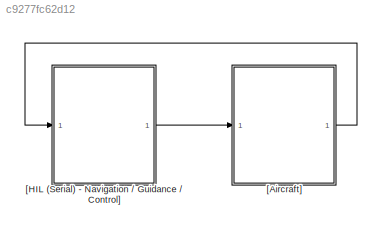
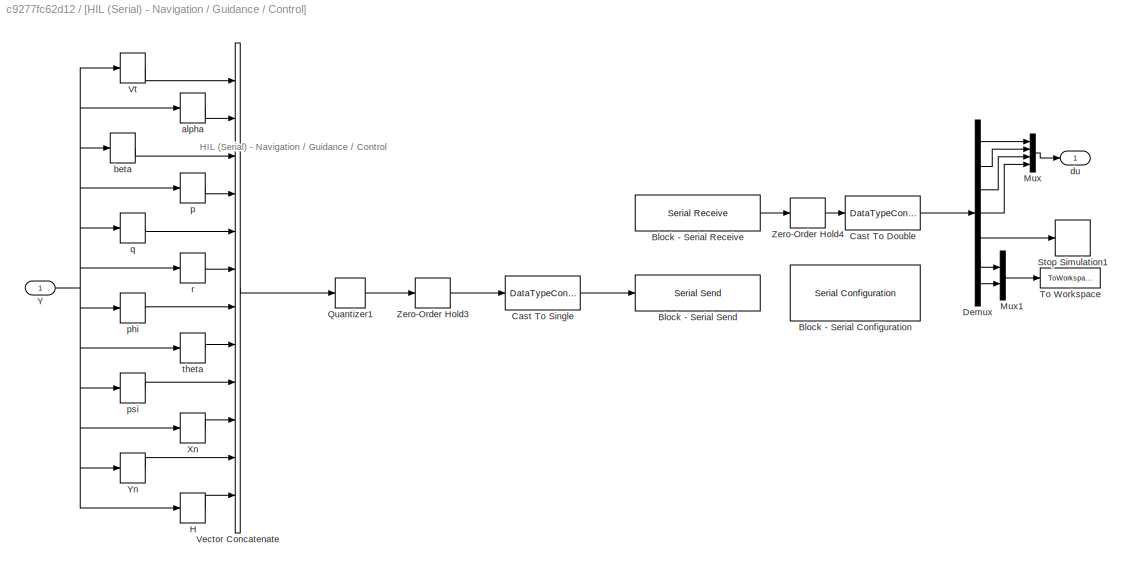
MODEL slx_c9277fc62d12
KIND model
CONFIG AbsTol = auto
CONFIG EnableMultiTasking = on
CONFIG FixedStep = 0.01
CONFIG MaxStep = auto
CONFIG MinStep = auto
CONFIG RelTol = 1e-3
CONFIG SampleTimeConstraint = Unconstrained
CONFIG Solver = ode4
CONFIG SolverName = ode4
CONFIG StartTime = 0.0
CONFIG StopTime = inf
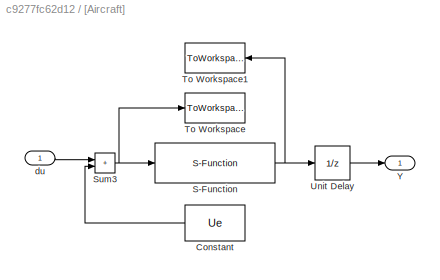
BLOCK [SubSystem] [Aircraft]
  Ports = [1, 1]
  RequestExecContextInheritance = off
BLOCK [Constant] [Aircraft]/Constant
  Value = Ue
BLOCK [S-Function] [Aircraft]/S-Function
  EnableBusSupport = off
  FunctionName = sfunction_piper
  Parameters = par_gen,par_aero,par_prop, Xe
  Ports = [1, 1]
  SFcnIsStateOwnerBlock = off
  SFunctionDeploymentMode = off
BLOCK [Sum] [Aircraft]/Sum3
  IconShape = rectangular
  Ports = [2, 1]
BLOCK [ToWorkspace] [Aircraft]/To Workspace
  MaxDataPoints = inf
  Ports = [1]
  SampleTime = -1
  SaveFormat = Timeseries
  VariableName = U
BLOCK [ToWorkspace] [Aircraft]/To Workspace1
  MaxDataPoints = inf
  Ports = [1]
  SampleTime = -1
  SaveFormat = Timeseries
  VariableName = Y
BLOCK [UnitDelay] [Aircraft]/Unit Delay
  HasFrameUpgradeWarning = on
  SampleTime = -1
BLOCK [Outport] [Aircraft]/Y
BLOCK [Inport] [Aircraft]/du
BLOCK [SubSystem] [HIL (Serial) - Navigation // Guidance // Control]
  Ports = [1, 1]
  RequestExecContextInheritance = off
BLOCK [Reference] [HIL (Serial) - Navigation // Guidance // Control]/Block - Serial Configuration  REF=instrumentlib/Serial Configuration
  Ports = []
  Priority = -200000
  SourceBlock = instrumentlib/Serial Configuration
  SourceProductBaseCode = IC
  SourceType = Serial Configuration
BLOCK [Reference] [HIL (Serial) - Navigation // Guidance // Control]/Block - Serial Receive  REF=instrumentlib/Serial Receive
  Ports = [0, 1]
  SourceBlock = instrumentlib/Serial Receive
  SourceProductBaseCode = IC
  SourceType = Serial Receive
BLOCK [Reference] [HIL (Serial) - Navigation // Guidance // Control]/Block - Serial Send  REF=instrumentlib/Serial Send
  Ports = [1]
  SourceBlock = instrumentlib/Serial Send
  SourceProductBaseCode = IC
  SourceType = Serial Send
BLOCK [DataTypeConversion] [HIL (Serial) - Navigation // Guidance // Control]/Cast To Double
  OutDataTypeStr = double
  RndMeth = Floor
  SaturateOnIntegerOverflow = off
BLOCK [DataTypeConversion] [HIL (Serial) - Navigation // Guidance // Control]/Cast To Single
  OutDataTypeStr = single
  RndMeth = Floor
  SaturateOnIntegerOverflow = off
BLOCK [Demux] [HIL (Serial) - Navigation // Guidance // Control]/Demux
  Outputs = 7
  Ports = [1, 7]
BLOCK [Selector] [HIL (Serial) - Navigation // Guidance // Control]/H
  IndexOptions = Index vector (dialog)
  Indices = [12]
  InputPortWidth = 12
  OutputSizes = 1
  Ports = [1, 1]
BLOCK [Mux] [HIL (Serial) - Navigation // Guidance // Control]/Mux
  DisplayOption = bar
  Ports = [4, 1]
BLOCK [Mux] [HIL (Serial) - Navigation // Guidance // Control]/Mux1
  DisplayOption = bar
  Inputs = 2
  Ports = [2, 1]
BLOCK [Quantizer] [HIL (Serial) - Navigation // Guidance // Control]/Quantizer1
  QuantizationInterval = 0.01
BLOCK [Stop] [HIL (Serial) - Navigation // Guidance // Control]/Stop Simulation1
BLOCK [ToWorkspace] [HIL (Serial) - Navigation // Guidance // Control]/To Workspace
  MaxDataPoints = inf
  Ports = [1]
  SampleTime = -1
  SaveFormat = Timeseries
  VariableName = He_Psie
BLOCK [Concatenate] [HIL (Serial) - Navigation // Guidance // Control]/Vector Concatenate
  NumInputs = 12
  Ports = [12, 1]
BLOCK [Selector] [HIL (Serial) - Navigation // Guidance // Control]/Vt
  IndexOptions = Index vector (dialog)
  Indices = [1]
  InputPortWidth = 12
  OutputSizes = 1
  Ports = [1, 1]
BLOCK [Selector] [HIL (Serial) - Navigation // Guidance // Control]/Xn
  IndexOptions = Index vector (dialog)
  Indices = [10]
  InputPortWidth = 12
  OutputSizes = 1
  Ports = [1, 1]
BLOCK [Inport] [HIL (Serial) - Navigation // Guidance // Control]/Y
BLOCK [Selector] [HIL (Serial) - Navigation // Guidance // Control]/Yn
  IndexOptions = Index vector (dialog)
  Indices = [11]
  InputPortWidth = 12
  OutputSizes = 1
  Ports = [1, 1]
BLOCK [ZeroOrderHold] [HIL (Serial) - Navigation // Guidance // Control]/Zero-Order Hold3
  SampleTime = 0.01
BLOCK [ZeroOrderHold] [HIL (Serial) - Navigation // Guidance // Control]/Zero-Order Hold4
  SampleTime = 0.01
BLOCK [Selector] [HIL (Serial) - Navigation // Guidance // Control]/alpha
  IndexOptions = Index vector (dialog)
  Indices = [2]
  InputPortWidth = 12
  OutputSizes = 1
  Ports = [1, 1]
BLOCK [Selector] [HIL (Serial) - Navigation // Guidance // Control]/beta
  IndexOptions = Index vector (dialog)
  Indices = [3]
  InputPortWidth = 12
  OutputSizes = 1
  Ports = [1, 1]
BLOCK [Outport] [HIL (Serial) - Navigation // Guidance // Control]/du
BLOCK [Selector] [HIL (Serial) - Navigation // Guidance // Control]/p
  IndexOptions = Index vector (dialog)
  Indices = [4]
  InputPortWidth = 12
  OutputSizes = 1
  Ports = [1, 1]
BLOCK [Selector] [HIL (Serial) - Navigation // Guidance // Control]/phi
  IndexOptions = Index vector (dialog)
  Indices = [7]
  InputPortWidth = 12
  OutputSizes = 1
  Ports = [1, 1]
BLOCK [Selector] [HIL (Serial) - Navigation // Guidance // Control]/psi
  IndexOptions = Index vector (dialog)
  Indices = [9]
  InputPortWidth = 12
  OutputSizes = 1
  Ports = [1, 1]
BLOCK [Selector] [HIL (Serial) - Navigation // Guidance // Control]/q
  IndexOptions = Index vector (dialog)
  Indices = [5]
  InputPortWidth = 12
  OutputSizes = 1
  Ports = [1, 1]
BLOCK [Selector] [HIL (Serial) - Navigation // Guidance // Control]/r
  IndexOptions = Index vector (dialog)
  Indices = [6]
  InputPortWidth = 12
  OutputSizes = 1
  Ports = [1, 1]
BLOCK [Selector] [HIL (Serial) - Navigation // Guidance // Control]/theta
  IndexOptions = Index vector (dialog)
  Indices = [8]
  InputPortWidth = 12
  OutputSizes = 1
  Ports = [1, 1]
ANNOTATION [HIL (Serial) - Navigation // Guidance // Control]: HIL (Serial) - Navigation / Guidance / Control
LINE [Aircraft]/Constant:1 -> [Aircraft]/Sum3:2
NET [Aircraft]/S-Function:1 -> [Aircraft]/To Workspace1:1, [Aircraft]/Unit Delay:1
NET [Aircraft]/Sum3:1 -> [Aircraft]/S-Function:1, [Aircraft]/To Workspace:1
LINE [Aircraft]/Unit Delay:1 -> [Aircraft]/Y:1
LINE [Aircraft]/du:1 -> [Aircraft]/Sum3:1
LINE [Aircraft]:1 -> [HIL (Serial) - Navigation // Guidance // Control]:1
LINE [HIL (Serial) - Navigation // Guidance // Control]/Block - Serial Receive:1 -> [HIL (Serial) - Navigation // Guidance // Control]/Zero-Order Hold4:1
LINE [HIL (Serial) - Navigation // Guidance // Control]/Cast To Double:1 -> [HIL (Serial) - Navigation // Guidance // Control]/Demux:1
LINE [HIL (Serial) - Navigation // Guidance // Control]/Cast To Single:1 -> [HIL (Serial) - Navigation // Guidance // Control]/Block - Serial Send:1
LINE [HIL (Serial) - Navigation // Guidance // Control]/Demux:1 -> [HIL (Serial) - Navigation // Guidance // Control]/Mux:1
LINE [HIL (Serial) - Navigation // Guidance // Control]/Demux:2 -> [HIL (Serial) - Navigation // Guidance // Control]/Mux:2
LINE [HIL (Serial) - Navigation // Guidance // Control]/Demux:3 -> [HIL (Serial) - Navigation // Guidance // Control]/Mux:3
LINE [HIL (Serial) - Navigation // Guidance // Control]/Demux:4 -> [HIL (Serial) - Navigation // Guidance // Control]/Mux:4
LINE [HIL (Serial) - Navigation // Guidance // Control]/Demux:5 -> [HIL (Serial) - Navigation // Guidance // Control]/Stop Simulation1:1
LINE [HIL (Serial) - Navigation // Guidance // Control]/Demux:6 -> [HIL (Serial) - Navigation // Guidance // Control]/Mux1:1
LINE [HIL (Serial) - Navigation // Guidance // Control]/Demux:7 -> [HIL (Serial) - Navigation // Guidance // Control]/Mux1:2
LINE [HIL (Serial) - Navigation // Guidance // Control]/H:1 -> [HIL (Serial) - Navigation // Guidance // Control]/Vector Concatenate:12
LINE [HIL (Serial) - Navigation // Guidance // Control]/Mux1:1 -> [HIL (Serial) - Navigation // Guidance // Control]/To Workspace:1
LINE [HIL (Serial) - Navigation // Guidance // Control]/Mux:1 -> [HIL (Serial) - Navigation // Guidance // Control]/du:1
LINE [HIL (Serial) - Navigation // Guidance // Control]/Quantizer1:1 -> [HIL (Serial) - Navigation // Guidance // Control]/Zero-Order Hold3:1
LINE [HIL (Serial) - Navigation // Guidance // Control]/Vector Concatenate:1 -> [HIL (Serial) - Navigation // Guidance // Control]/Quantizer1:1
LINE [HIL (Serial) - Navigation // Guidance // Control]/Vt:1 -> [HIL (Serial) - Navigation // Guidance // Control]/Vector Concatenate:1
LINE [HIL (Serial) - Navigation // Guidance // Control]/Xn:1 -> [HIL (Serial) - Navigation // Guidance // Control]/Vector Concatenate:10
NET [HIL (Serial) - Navigation // Guidance // Control]/Y:1 -> [HIL (Serial) - Navigation // Guidance // Control]/H:1, [HIL (Serial) - Navigation // Guidance // Control]/Vt:1, [HIL (Serial) - Navigation // Guidance // Control]/Xn:1, [HIL (Serial) - Navigation // Guidance // Control]/Yn:1, [HIL (Serial) - Navigation // Guidance // Control]/alpha:1, [HIL (Serial) - Navigation // Guidance // Control]/beta:1, [HIL (Serial) - Navigation // Guidance // Control]/p:1, [HIL (Serial) - Navigation // Guidance // Control]/phi:1, [HIL (Serial) - Navigation // Guidance // Control]/psi:1, [HIL (Serial) - Navigation // Guidance // Control]/q:1, [HIL (Serial) - Navigation // Guidance // Control]/r:1, [HIL (Serial) - Navigation // Guidance // Control]/theta:1
LINE [HIL (Serial) - Navigation // Guidance // Control]/Yn:1 -> [HIL (Serial) - Navigation // Guidance // Control]/Vector Concatenate:11
LINE [HIL (Serial) - Navigation // Guidance // Control]/Zero-Order Hold3:1 -> [HIL (Serial) - Navigation // Guidance // Control]/Cast To Single:1
LINE [HIL (Serial) - Navigation // Guidance // Control]/Zero-Order Hold4:1 -> [HIL (Serial) - Navigation // Guidance // Control]/Cast To Double:1
LINE [HIL (Serial) - Navigation // Guidance // Control]/alpha:1 -> [HIL (Serial) - Navigation // Guidance // Control]/Vector Concatenate:2
LINE [HIL (Serial) - Navigation // Guidance // Control]/beta:1 -> [HIL (Serial) - Navigation // Guidance // Control]/Vector Concatenate:3
LINE [HIL (Serial) - Navigation // Guidance // Control]/p:1 -> [HIL (Serial) - Navigation // Guidance // Control]/Vector Concatenate:4
LINE [HIL (Serial) - Navigation // Guidance // Control]/phi:1 -> [HIL (Serial) - Navigation // Guidance // Control]/Vector Concatenate:7
LINE [HIL (Serial) - Navigation // Guidance // Control]/psi:1 -> [HIL (Serial) - Navigation // Guidance // Control]/Vector Concatenate:9
LINE [HIL (Serial) - Navigation // Guidance // Control]/q:1 -> [HIL (Serial) - Navigation // Guidance // Control]/Vector Concatenate:5
LINE [HIL (Serial) - Navigation // Guidance // Control]/r:1 -> [HIL (Serial) - Navigation // Guidance // Control]/Vector Concatenate:6
LINE [HIL (Serial) - Navigation // Guidance // Control]/theta:1 -> [HIL (Serial) - Navigation // Guidance // Control]/Vector Concatenate:8
LINE [HIL (Serial) - Navigation // Guidance // Control]:1 -> [Aircraft]:1
note: NET lines group one-source signal fan-out (src -> all destinations, sorted); 1:1 wires keep LINE
